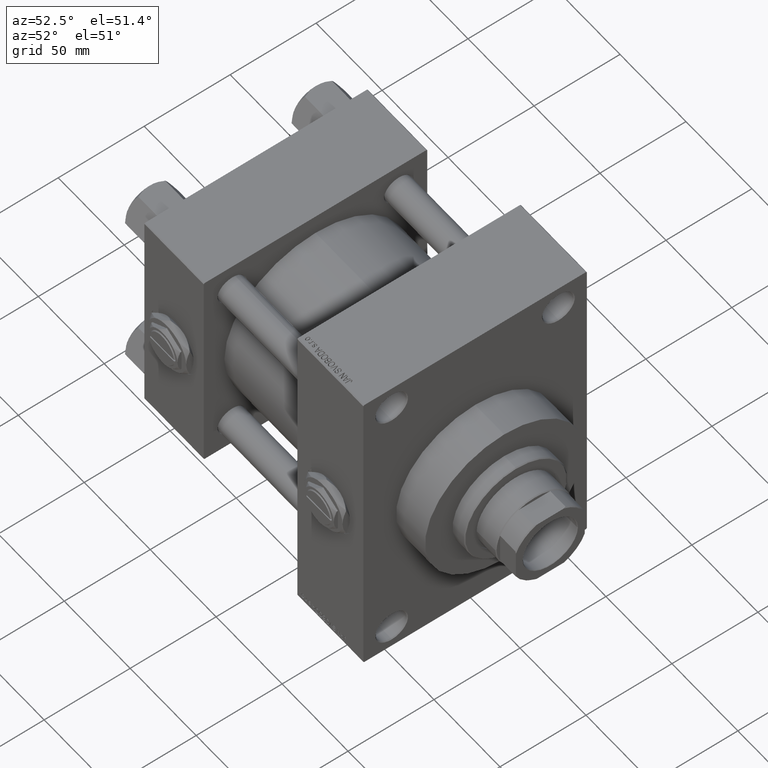
[diagram: clean part render]
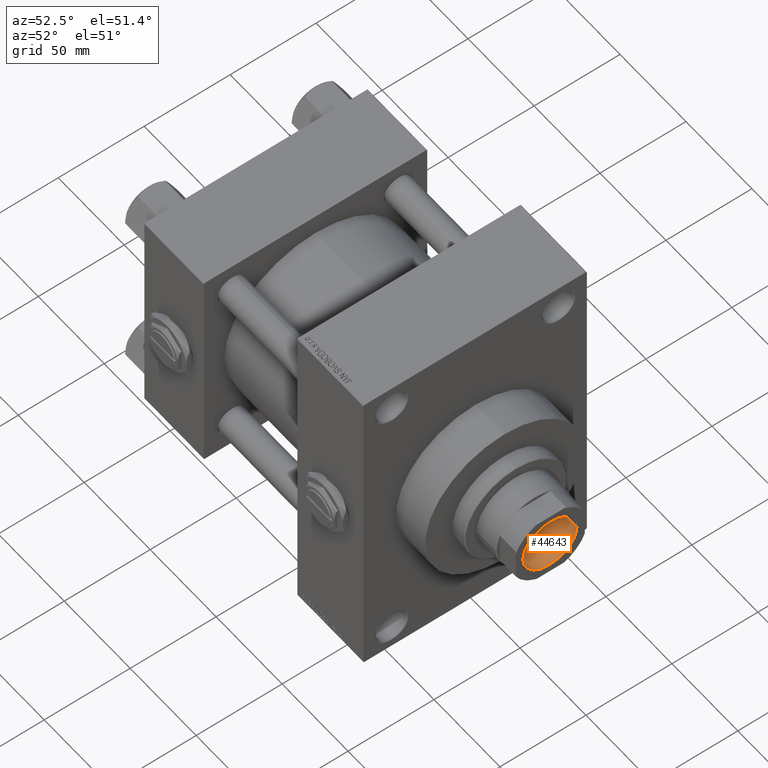
[diagram: same view with one face highlighted and labeled with its STEP entity id]
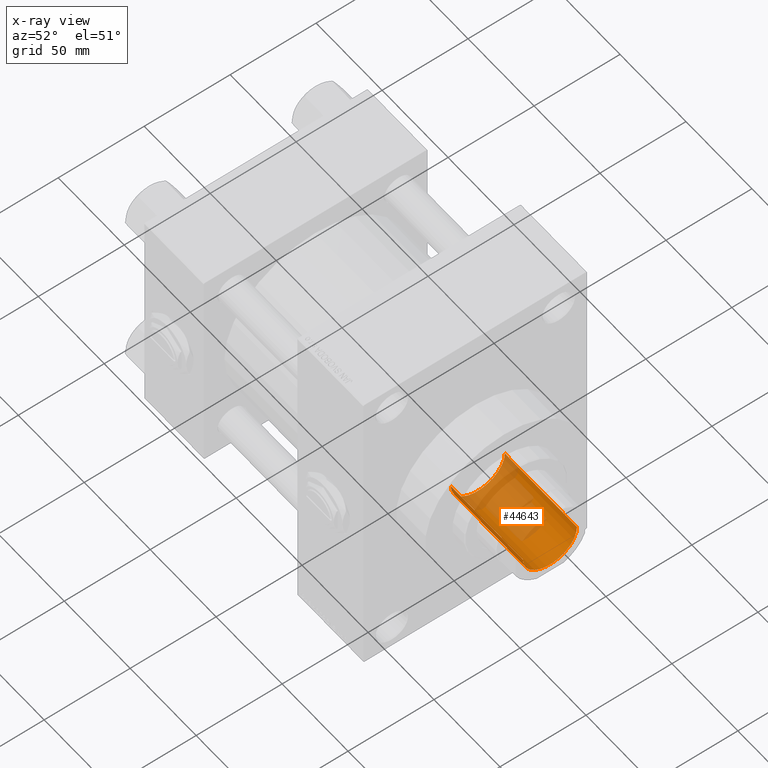
[diagram: x-ray of the same camera — body ghosted, the highlighted face saturated]
A machine part, auxiliary view. The second image highlights one B-rep face of the part: STEP entity #44643.
The next image is the same camera in x-ray: the body ghosted, the highlighted face saturated — about 46% of this face is hidden behind the body in this view.
In plain terms, the highlighted cylindrical surface (edge-blend (fillet) strip) has radius 15.75 mm, axis along (1, 0, 0).
Its self-contained STEP definition (entity closure, byte-faithful):
#18 = AXIS2_PLACEMENT_3D ( 'NONE', #37113, #17959, #33327 ) ;
#598 = CARTESIAN_POINT ( 'NONE',  ( 15.74999999999998934, 0.000000000000000000, 123.0000000000000142 ) ) ;
#2101 = DIRECTION ( 'NONE',  ( -0.000000000000000000, -0.000000000000000000, 1.000000000000000000 ) ) ;
#2423 = CYLINDRICAL_SURFACE ( 'NONE', #4699, 15.74999999999999289 ) ;
#2661 = FACE_OUTER_BOUND ( 'NONE', #21635, .T. ) ;
#3798 = DIRECTION ( 'NONE',  ( -0.000000000000000000, -0.000000000000000000, 1.000000000000000000 ) ) ;
#4016 = VECTOR ( 'NONE', #3798, 1000.000000000000000 ) ;
#4132 = CARTESIAN_POINT ( 'NONE',  ( 15.74999999999999289, 0.000000000000000000, 178.0000000000000284 ) ) ;
#4699 = AXIS2_PLACEMENT_3D ( 'NONE', #28368, #32635, #43731 ) ;
#6830 = ORIENTED_EDGE ( 'NONE', *, *, #33207, .F. ) ;
#7322 = ORIENTED_EDGE ( 'NONE', *, *, #48596, .T. ) ;
#8511 = CARTESIAN_POINT ( 'NONE',  ( -15.74999999999998934, 1.928818708657080161E-15, 123.0000000000000142 ) ) ;
#12823 = ORIENTED_EDGE ( 'NONE', *, *, #14104, .T. ) ;
#13367 = AXIS2_PLACEMENT_3D ( 'NONE', #36589, #2101, #21466 ) ;
#14104 = EDGE_CURVE ( 'NONE', #22315, #25018, #23260, .T. ) ;
#15757 = CIRCLE ( 'NONE', #13367, 15.74999999999998934 ) ;
#17959 = DIRECTION ( 'NONE',  ( 0.000000000000000000, 0.000000000000000000, 1.000000000000000000 ) ) ;
#21466 = DIRECTION ( 'NONE',  ( 1.000000000000000000, 0.000000000000000000, 0.000000000000000000 ) ) ;
#21635 = EDGE_LOOP ( 'NONE', ( #29269, #6830, #12823, #7322 ) ) ;
#22315 = VERTEX_POINT ( 'NONE', #598 ) ;
#22914 = LINE ( 'NONE', #38282, #4016 ) ;
#23260 = LINE ( 'NONE', #4132, #24014 ) ;
#24014 = VECTOR ( 'NONE', #34592, 1000.000000000000000 ) ;
#25018 = VERTEX_POINT ( 'NONE', #28907 ) ;
#28368 = CARTESIAN_POINT ( 'NONE',  ( 0.000000000000000000, 0.000000000000000000, 178.0000000000000284 ) ) ;
#28907 = CARTESIAN_POINT ( 'NONE',  ( 15.74999999999999289, 0.000000000000000000, 177.6999999999999886 ) ) ;
#29269 = ORIENTED_EDGE ( 'NONE', *, *, #48168, .F. ) ;
#32635 = DIRECTION ( 'NONE',  ( -0.000000000000000000, -0.000000000000000000, 1.000000000000000000 ) ) ;
#33207 = EDGE_CURVE ( 'NONE', #22315, #35707, #15757, .T. ) ;
#33327 = DIRECTION ( 'NONE',  ( 1.000000000000000000, 0.000000000000000000, 0.000000000000000000 ) ) ;
#34592 = DIRECTION ( 'NONE',  ( -0.000000000000000000, -0.000000000000000000, 1.000000000000000000 ) ) ;
#34743 = VERTEX_POINT ( 'NONE', #35131 ) ;
#35131 = CARTESIAN_POINT ( 'NONE',  ( -15.74999999999999289, 1.928818708657080556E-15, 177.6999999999999886 ) ) ;
#35707 = VERTEX_POINT ( 'NONE', #8511 ) ;
#36589 = CARTESIAN_POINT ( 'NONE',  ( 0.000000000000000000, 0.000000000000000000, 123.0000000000000142 ) ) ;
#37113 = CARTESIAN_POINT ( 'NONE',  ( 0.000000000000000000, 0.000000000000000000, 177.6999999999999886 ) ) ;
#38282 = CARTESIAN_POINT ( 'NONE',  ( -15.74999999999999289, 1.928818708657080556E-15, 178.0000000000000284 ) ) ;
#43460 = CIRCLE ( 'NONE', #18, 15.74999999999999289 ) ;
#43731 = DIRECTION ( 'NONE',  ( 1.000000000000000000, 0.000000000000000000, 0.000000000000000000 ) ) ;
#44643 = ADVANCED_FACE ( 'NONE', ( #2661 ), #2423, .F. ) ;
#48168 = EDGE_CURVE ( 'NONE', #35707, #34743, #22914, .T. ) ;
#48596 = EDGE_CURVE ( 'NONE', #25018, #34743, #43460, .T. ) ;